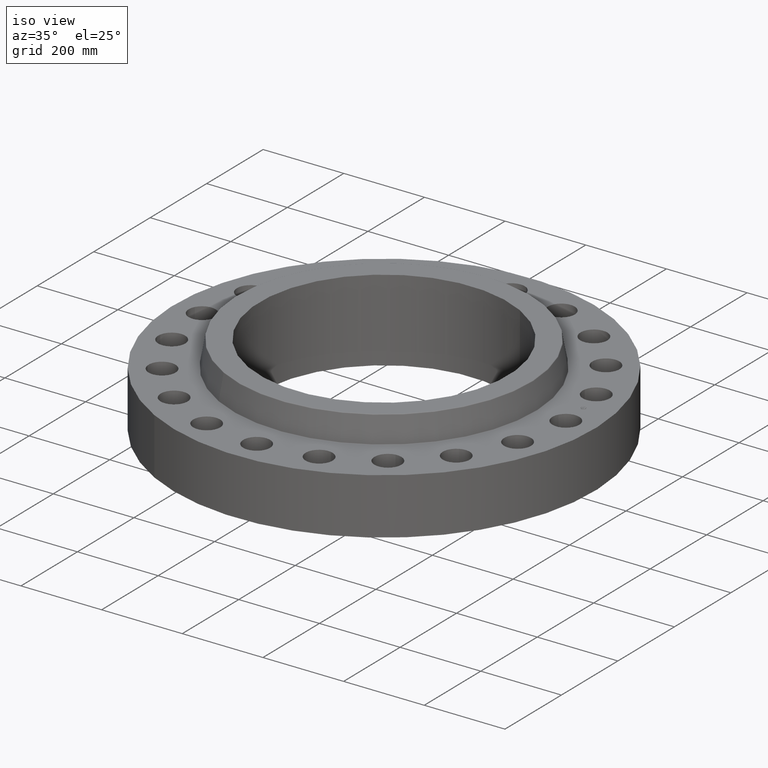
[diagram: clean part render]
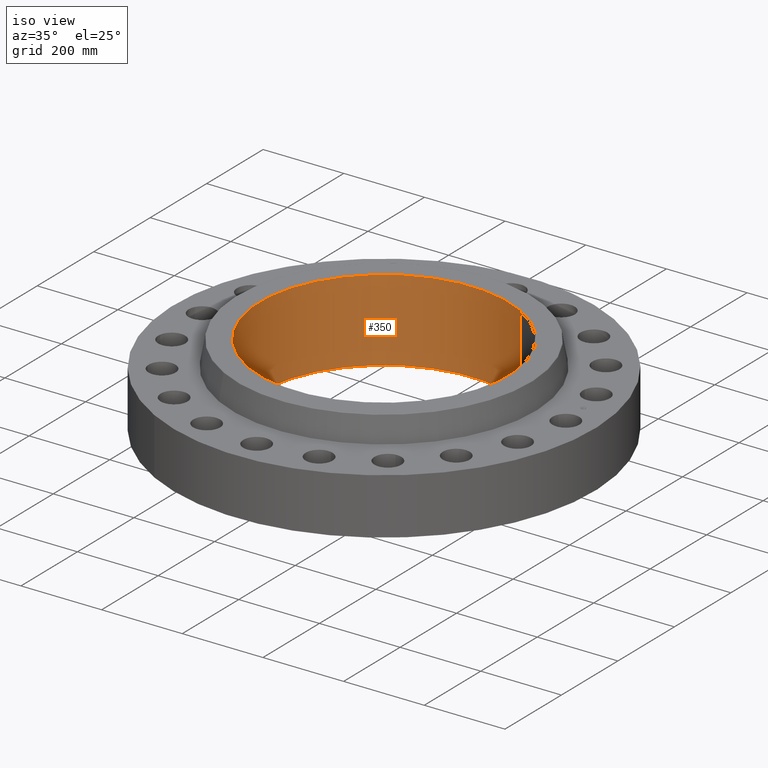
[diagram: same view with one face highlighted and labeled with its STEP entity id]
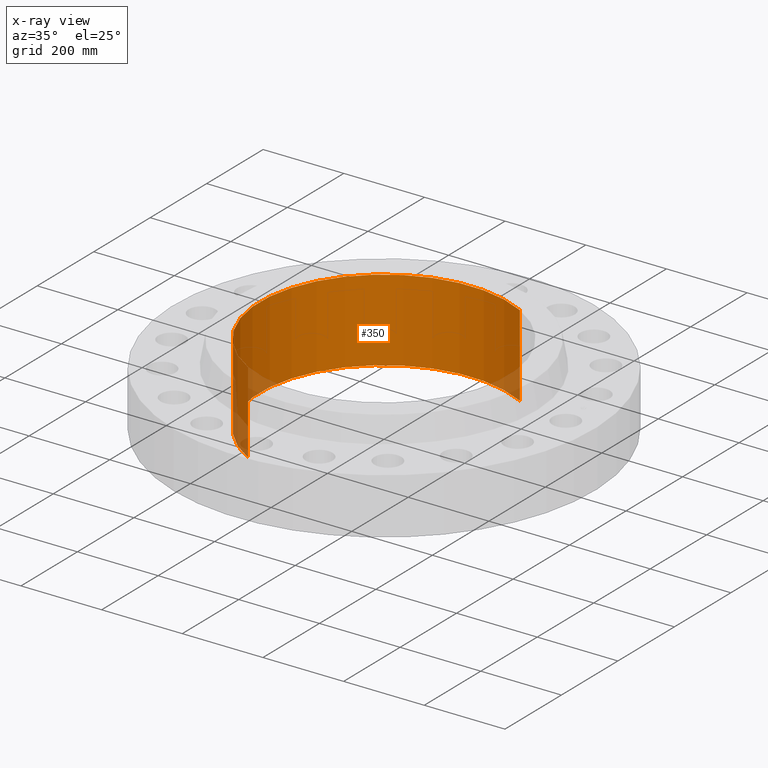
[diagram: x-ray of the same camera — body ghosted, the highlighted face saturated]
A machine part, iso view. The second image highlights one B-rep face of the part: STEP entity #350.
The next image is the same camera in x-ray: the body ghosted, the highlighted face saturated — about 6% of this face is hidden behind the body in this view.
In plain terms, the highlighted cylindrical surface (partial cylindrical patch) has radius 307.975 mm, axis along (0, 0, -1).
Its self-contained STEP definition (entity closure, byte-faithful):
#303=AXIS2_PLACEMENT_3D('Circle Axis2P3D',#301,#302,$) ;
#323=AXIS2_PLACEMENT_3D('Cylinder Axis2P3D',#320,#321,#322) ;
#334=AXIS2_PLACEMENT_3D('Circle Axis2P3D',#332,#333,$) ;
#301=CARTESIAN_POINT('Axis2P3D Location',(0.,0.,8.00000000003)) ;
#305=CARTESIAN_POINT('Vertex',(-5.8130346556,-10.640688563,8.00000000003)) ;
#307=CARTESIAN_POINT('Vertex',(5.8130346556,10.640688563,8.00000000003)) ;
#320=CARTESIAN_POINT('Axis2P3D Location',(0.,0.,4.00000000002)) ;
#325=CARTESIAN_POINT('Line Origine',(-5.8130346556,-10.640688563,4.00000000002)) ;
#329=CARTESIAN_POINT('Vertex',(-5.8130346556,-10.640688563,-1.56655091349E-014)) ;
#332=CARTESIAN_POINT('Axis2P3D Location',(0.,0.,-1.56655091349E-014)) ;
#336=CARTESIAN_POINT('Vertex',(5.8130346556,10.640688563,-1.56655091349E-014)) ;
#339=CARTESIAN_POINT('Line Origine',(5.8130346556,10.640688563,4.00000000002)) ;
#302=DIRECTION('Axis2P3D Direction',(0.,0.,-0.0393700787402)) ;
#321=DIRECTION('Axis2P3D Direction',(0.,0.,-0.0393700787402)) ;
#322=DIRECTION('Axis2P3D XDirection',(0.0188750212049,0.0345504945626,0.)) ;
#326=DIRECTION('Vector Direction',(0.,0.,-0.0393700787402)) ;
#333=DIRECTION('Axis2P3D Direction',(0.,0.,-0.0393700787402)) ;
#340=DIRECTION('Vector Direction',(0.,0.,-0.0393700787402)) ;
#327=VECTOR('Line Direction',#326,0.0393700787402) ;
#341=VECTOR('Line Direction',#340,0.0393700787402) ;
#345=ORIENTED_EDGE('',*,*,#309,.F.) ;
#346=ORIENTED_EDGE('',*,*,#331,.T.) ;
#347=ORIENTED_EDGE('',*,*,#338,.T.) ;
#348=ORIENTED_EDGE('',*,*,#343,.F.) ;
#350=ADVANCED_FACE('PartBody',(#349),#324,.F.) ;
#304=CIRCLE('generated circle',#303,12.125) ;
#335=CIRCLE('generated circle',#334,12.125) ;
#324=CYLINDRICAL_SURFACE('generated cylinder',#323,12.125) ;
#309=EDGE_CURVE('',#306,#308,#304,.T.) ;
#331=EDGE_CURVE('',#306,#330,#328,.T.) ;
#338=EDGE_CURVE('',#330,#337,#335,.T.) ;
#343=EDGE_CURVE('',#308,#337,#342,.T.) ;
#344=EDGE_LOOP('',(#345,#346,#347,#348)) ;
#349=FACE_OUTER_BOUND('',#344,.T.) ;
#328=LINE('Line',#325,#327) ;
#342=LINE('Line',#339,#341) ;
#306=VERTEX_POINT('',#305) ;
#308=VERTEX_POINT('',#307) ;
#330=VERTEX_POINT('',#329) ;
#337=VERTEX_POINT('',#336) ;